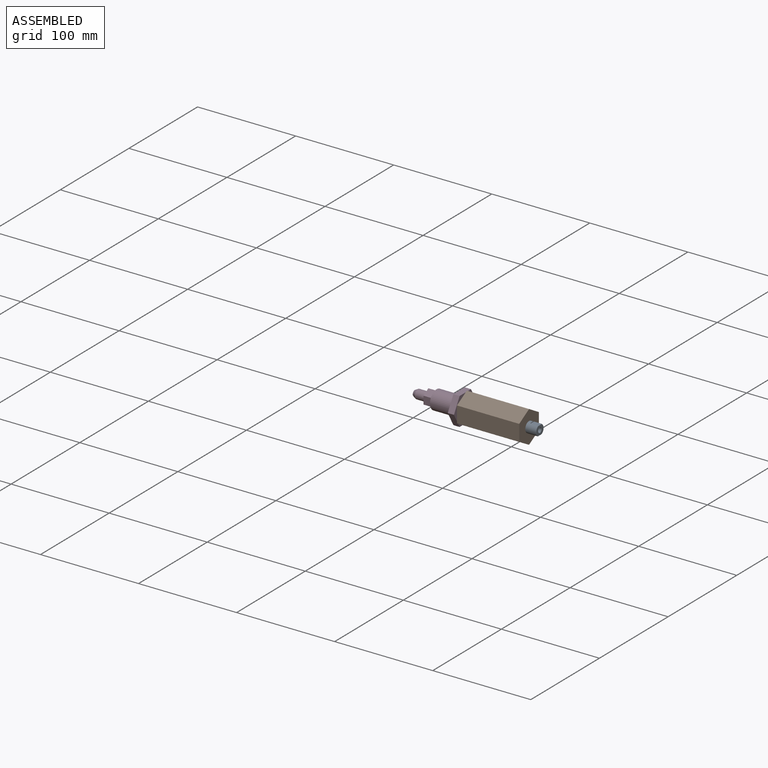
[diagram: assembled view]
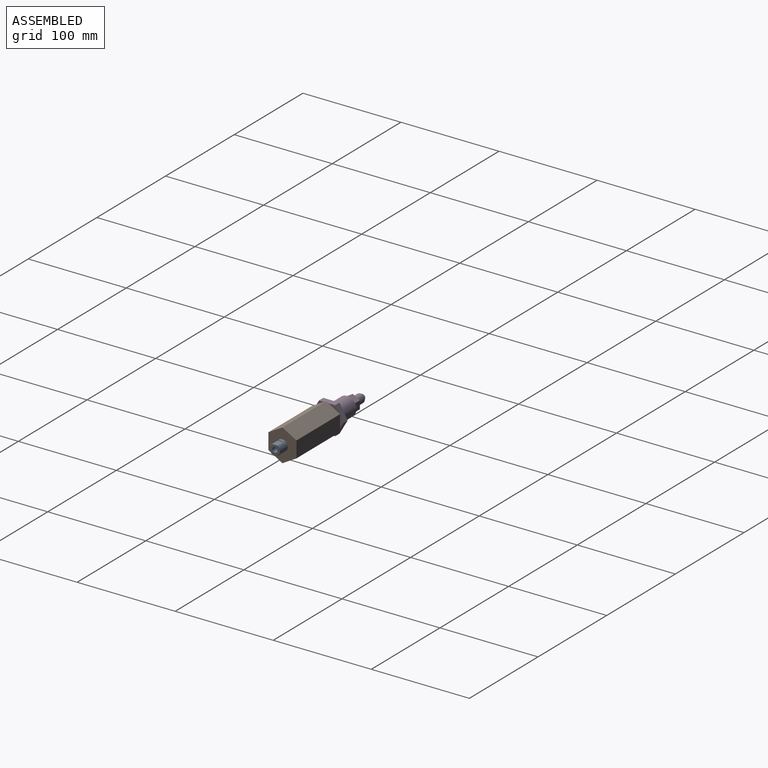
[diagram: assembled view, second angle]
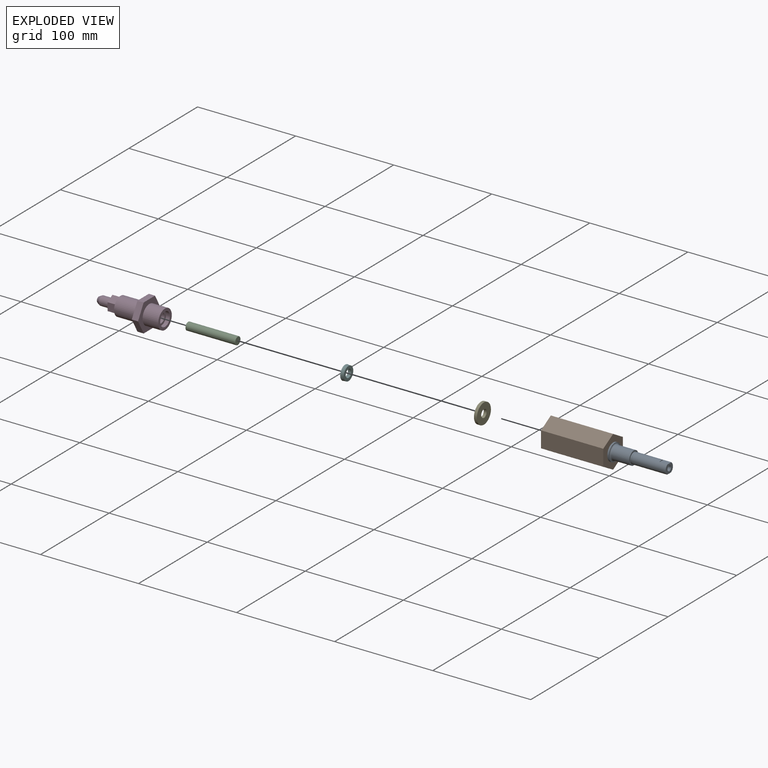
[diagram: exploded view]
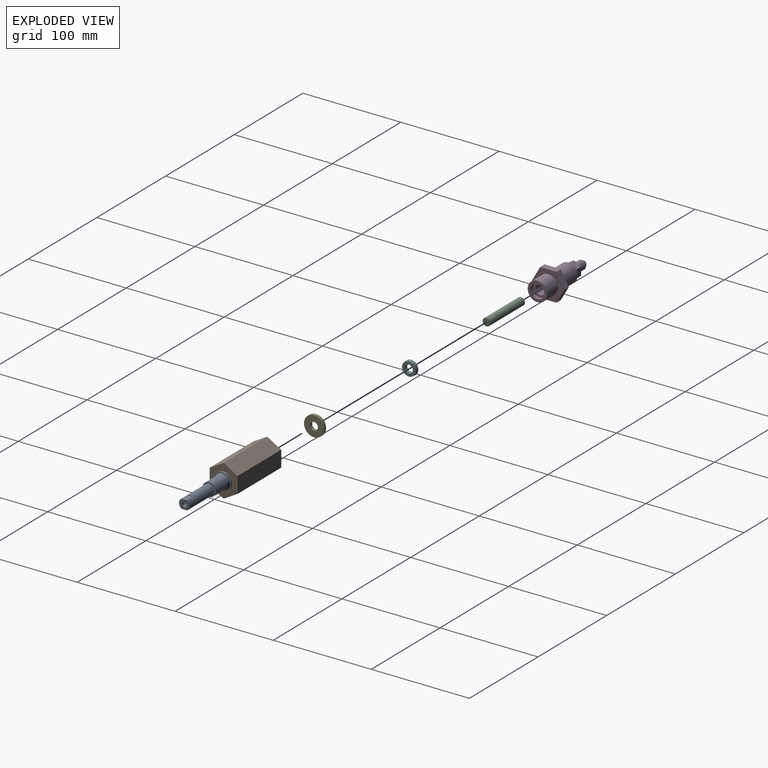
[diagram: exploded view, second angle]
ASSEMBLY  parts=6 mates=5
PART A: 29 faces, bbox 57.1x17.5x17.5 mm
  f0: cylinder r=5.5mm len=34.26mm, axis (-1,0,0), area 1092.3mm2, adj f10,f12,f15,f16,f17,f18,f22,f23
  f1: plane 10.49x9.02mm, normal (1,0,0), area 60.8mm2, adj f9,f19,f22,f23,f26
  f2: cylinder r=6.82mm len=18.09mm, axis (1,0,0), area 774.9mm2, adj f3,f14
  f3: plane 13.64x13.64mm, normal (1,0,0), area 58mm2, adj f2,f28
  f4: cylinder r=8.74mm len=17.48mm, axis (-1,0,0), area 87.9mm2, adj f5,f6
  f5: plane 17.48x17.48mm, normal (1,0,0), area 34.2mm2, adj f4,f14
  f6: plane 17.48x17.48mm, normal (-1,0,0), area 192.7mm2, adj f4,f7
  f7: cylinder r=3.87mm len=19.66mm, axis (-1,0,0), area 478.5mm2, adj f6,f8
  f8: plane 7.75x7.75mm, normal (-1,0,0), area 26.9mm2, adj f7,f9
  f9: cylinder r=2.54mm len=37.44mm, axis (1,0,0), area 597.5mm2, adj f1,f8
  f10: plane 5.62x0.77mm, normal (1,0,0), area 2.7mm2, adj f0,f11,f17,f18
  f11: plane 7.75x5.36mm, normal (0,0,1), area 41.5mm2, adj f10,f17,f18,f26
  f12: plane 5.62x0.77mm, normal (1,0,0), area 2.7mm2, adj f0,f13,f15,f16
  f13: plane 7.75x5.36mm, normal (0,0,-1), area 41.5mm2, adj f12,f15,f16,f19
  f14: torus R=8.09mm, axis (-1,0,0), area 91.3mm2, adj f2,f5
  f15: cylinder r=0.25mm len=7.75mm, axis (-1,0,0), area 1.1mm2, adj f0,f12,f13,f20
  f16: cylinder r=0.25mm len=7.75mm, axis (-1,0,0), area 1.1mm2, adj f0,f12,f13,f21
  f17: cylinder r=0.25mm len=7.75mm, axis (-1,0,0), area 1.1mm2, adj f0,f10,f11,f24
  f18: cylinder r=0.25mm len=7.75mm, axis (-1,0,0), area 1.1mm2, adj f0,f10,f11,f25
  f19: cylinder r=0.25mm len=5.36mm, axis (0,1,0), area 2.1mm2, adj f1,f13,f20,f21
  f20: sphere r=0.25mm, area 0mm2, adj f15,f19,f22
  f21: sphere r=0.25mm, area 0mm2, adj f16,f19,f23
  f22: torus R=5.25mm, axis (1,0,0), area 4.5mm2, adj f0,f1,f20,f24
  f23: torus R=5.25mm, axis (1,0,0), area 4.5mm2, adj f0,f1,f21,f25
  f24: sphere r=0.25mm, area 0mm2, adj f17,f22,f26
  f25: sphere r=0.25mm, area 0mm2, adj f18,f23,f26
  f26: cylinder r=0.25mm len=5.36mm, axis (0,-1,0), area 2.1mm2, adj f1,f11,f24,f25
  f27: cone r=5.3mm half-angle=30deg, axis (1,0,0), area 13.8mm2, adj f0,f28
  f28: cylinder r=5.3mm len=10.59mm, axis (1,0,0), area 42.6mm2, adj f3,f27
PART B: 13 faces, bbox 33x28.6x63.5 mm
  f0: plane 63.5x14.29mm, normal (0.87,0.5,0), area 1047.6mm2, adj f1,f5,f6,f7
  f1: plane 63.5x16.5mm, normal (0,1,0), area 1047.6mm2, adj f0,f2,f6,f7
  f2: plane 63.5x14.29mm, normal (-0.87,0.5,0), area 1047.6mm2, adj f1,f3,f6,f7
  f3: plane 63.5x14.29mm, normal (-0.87,-0.5,0), area 1047.6mm2, adj f2,f4,f6,f7
  f4: plane 63.5x16.5mm, normal (0,-1,0), area 1047.6mm2, adj f3,f5,f6,f7
  f5: plane 63.5x14.29mm, normal (0.87,-0.5,0), area 1047.6mm2, adj f0,f4,f6,f7
  f6: plane 33x28.58mm, normal (0,0,1), area 613.4mm2, adj f0,f1,f2,f3,f4,f5,f10
  f7: plane 33x28.58mm, normal (0,0,-1), area 319.2mm2, adj f0,f1,f2,f3,f4,f5,f8
  f8: cylinder r=11.11mm len=22.23mm, axis (0,0,-1), area 1220.2mm2, adj f7,f12
  f9: plane 18.92x18.92mm, normal (0,0,-1), area 187.5mm2, adj f10,f11
  f10: cylinder r=5.46mm len=10.92mm, axis (0,0,1), area 197mm2, adj f6,f9
  f11: cylinder r=9.46mm len=40.28mm, axis (0,0,1), area 2394.8mm2, adj f9,f12
  f12: plane 22.23x22.23mm, normal (0,0,-1), area 106.7mm2, adj f8,f11
PART C: 5 faces, bbox 8.6x50.8x8.6 mm
  f0: cylinder r=3.96mm len=50.29mm, axis (0,1,0), area 1252.1mm2, adj f3,f4
  f1: plane 7.42x7.42mm, normal (0,-1,0), area 43.2mm2, adj f4
  f2: plane 7.42x7.42mm, normal (0,1,0), area 43.2mm2, adj f3
  f3: torus R=3.71mm, axis (0,-1,0), area 9.7mm2, adj f0,f2
  f4: torus R=3.71mm, axis (0,-1,0), area 9.7mm2, adj f0,f1
PART D: 27 faces, bbox 33x67.6x28.6 mm
  f0: cylinder r=9.87mm len=19.74mm, axis (0,1,0), area 992.2mm2, adj f1,f9
  f1: plane 19.74x19.74mm, normal (0,-1,0), area 149.3mm2, adj f0,f22
  f2: plane 14.29x8.25mm, normal (0.87,0,-0.5), area 104.8mm2, adj f3,f7,f8,f9
  f3: plane 16.5x6.35mm, normal (0,0,-1), area 104.8mm2, adj f2,f4,f8,f9
  f4: plane 14.29x8.25mm, normal (-0.87,0,-0.5), area 104.8mm2, adj f3,f5,f8,f9
  f5: plane 14.29x8.25mm, normal (-0.87,0,0.5), area 104.8mm2, adj f4,f6,f8,f9
  f6: plane 16.5x6.35mm, normal (0,0,1), area 104.8mm2, adj f5,f7,f8,f9
  f7: plane 14.29x8.25mm, normal (0.87,0,0.5), area 104.8mm2, adj f2,f6,f8,f9
  f8: plane 33x28.58mm, normal (0,1,0), area 425.1mm2, adj f2,f3,f4,f5,f6,f7,f10
  f9: plane 33x28.58mm, normal (0,-1,0), area 401.2mm2, adj f0,f2,f3,f4,f5,f6,f7
  f10: cylinder r=9.47mm len=23.04mm, axis (0,-1,0), area 1371.4mm2, adj f8,f11
  f11: plane 18.95x18.95mm, normal (0,1,0), area 106.8mm2, adj f10,f12,f13,f14,f15,f16,f17
  f12: plane 8.26x8.21mm, normal (1,0,0.01), area 67.8mm2, adj f11,f13,f17,f18
  f13: plane 8.26x7.08mm, normal (0.51,0,-0.86), area 67.8mm2, adj f11,f12,f14,f18
  f14: plane 8.26x7.14mm, normal (-0.49,0,-0.87), area 67.8mm2, adj f11,f13,f15,f18
  f15: plane 8.26x8.21mm, normal (-1,0,-0.01), area 67.8mm2, adj f11,f14,f16,f18
  f16: plane 8.26x7.08mm, normal (-0.51,0,0.86), area 67.8mm2, adj f11,f15,f17,f18
  f17: plane 8.26x7.14mm, normal (0.49,0,0.87), area 67.8mm2, adj f11,f12,f16,f18
  f18: plane 16.42x14.29mm, normal (0,1,0), area 109.5mm2, adj f12,f13,f14,f15,f16,f17,f19
  f19: cylinder r=4.57mm len=10.72mm, axis (0,-1,0), area 307.9mm2, adj f18,f20
  f20: cone r=2.79mm half-angle=28.7deg, axis (0,-1,0), area 85.8mm2, adj f19,f21
  f21: plane 5.59x5.59mm, normal (0,1,0), area 11.1mm2, adj f20,f26
  f22: cylinder r=7.06mm len=14.12mm, axis (0,-1,0), area 174.7mm2, adj f1,f23
  f23: plane 14.12x14.12mm, normal (0,-1,0), area 83.5mm2, adj f22,f24
  f24: cylinder r=4.83mm len=31.8mm, axis (0,-1,0), area 964.3mm2, adj f23,f25
  f25: plane 9.65x9.65mm, normal (0,-1,0), area 59.7mm2, adj f24,f26
  f26: cylinder r=2.07mm len=31.88mm, axis (0,1,0), area 414.6mm2, adj f21,f25
PART E: 4 faces, bbox 20.5x3x20.5 mm
  f0: cylinder r=3.96mm len=7.92mm, axis (0,1,0), area 74.6mm2, adj f2,f3
  f1: cylinder r=10.24mm len=20.47mm, axis (0,1,0), area 192.8mm2, adj f2,f3
  f2: plane 20.47x20.47mm, normal (0,-1,0), area 279.9mm2, adj f0,f1
  f3: plane 20.47x20.47mm, normal (0,1,0), area 279.9mm2, adj f0,f1
PART F: 5 faces, bbox 14.5x3.4x14.5 mm
  f0: cylinder r=4.06mm len=8.13mm, axis (0,1,0), area 88mm2, adj f2,f3
  f1: cylinder r=6.99mm len=13.97mm, axis (0,1,0), area 87.8mm2, adj f2,f4
  f2: plane 13.97x13.97mm, normal (0,-1,0), area 101.4mm2, adj f0,f1
  f3: plane 14.48x14.48mm, normal (0,1,0), area 112.7mm2, adj f0,f4
  f4: cone r=6.99mm half-angle=10deg, axis (0,1,0), area 65.7mm2, adj f1,f3
PLACE A t=(-12.56,8.1,27.11)mm
PLACE B rot(axis=(0,1,0),90deg) t=(-50.99,8.1,27.11)mm fixed
PLACE C rot(axis=(0.71,0.71,0),180deg) t=(-13.86,8.1,27.11)mm
PLACE D rot(axis=(0,0,1),90deg) t=(-52.52,8.1,27.11)mm
PLACE E rot(axis=(0,0,-1),90deg) t=(-33.52,8.1,27.11)mm
PLACE F rot(axis=(-0.58,0.58,0.58),120deg) t=(-39.01,8.1,27.11)mm
MATE fastened C.f0 <-> A.f0  axis (1,0,0) through (-13.86,8.1,27.11)mm
MATE fastened E.f1 <-> B.f8  axis (1,0,0) through (-33.52,8.1,27.11)mm
MATE fastened D.f0 <-> E.f1  axis (1,0,0) through (-36.52,8.1,27.11)mm
MATE fastened F.f0 <-> D.f22  axis (-1,0,0) through (-40.45,8.1,27.11)mm
MATE fastened A.f4 <-> E.f1  axis (-1,0,0) through (-33.52,8.1,27.11)mm
